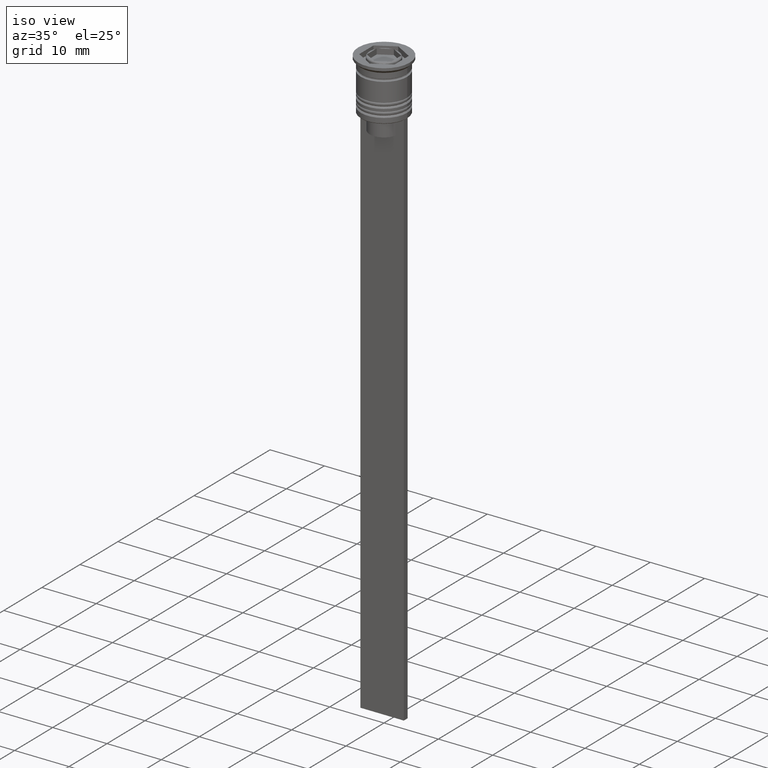
[diagram: clean part render]
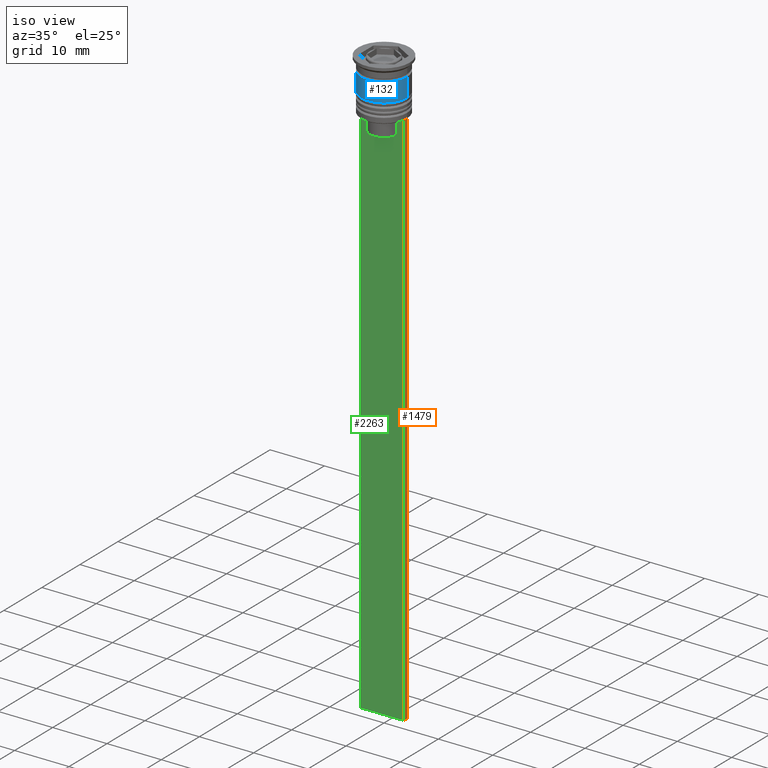
[diagram: same view with three faces highlighted in distinct colors, each labeled with its STEP entity id]
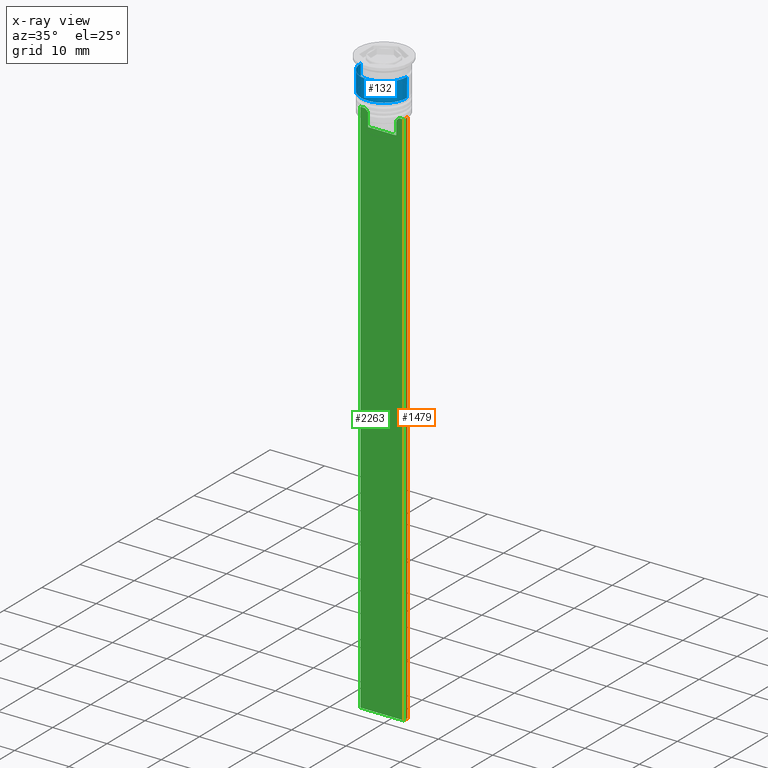
[diagram: x-ray of the same camera — body ghosted, the three highlighted faces saturated]
A machine part, iso view with three faces highlighted in distinct colors.
The next image is the same camera in x-ray (body ghosted, the three faces saturated) — at least one of them is partly hidden behind the body in this view.
Their STEP definitions:

[orange] entity #1479 — the highlighted planar face has unit normal (-1, 0, 0).
#8 = CARTESIAN_POINT ( 'NONE',  ( 4.000000000000005329, 0.4999999999999995559, -1.437742251701450202 ) ) ;
#14 = DIRECTION ( 'NONE',  ( 0.000000000000000000, 1.000000000000000000, 0.000000000000000000 ) ) ;
#217 = LINE ( 'NONE', #8, #1186 ) ;
#355 = EDGE_CURVE ( 'NONE', #1480, #1557, #440, .T. ) ;
#424 = CARTESIAN_POINT ( 'NONE',  ( 4.000000000000005329, -0.5000000000000004441, -9.500000000000000000 ) ) ;
#440 = LINE ( 'NONE', #813, #563 ) ;
#556 = CARTESIAN_POINT ( 'NONE',  ( 4.000000000000005329, -0.5000000000000004441, -109.5000000000000000 ) ) ;
#563 = VECTOR ( 'NONE', #2294, 1000.000000000000000 ) ;
#576 = VERTEX_POINT ( 'NONE', #1645 ) ;
#593 = CARTESIAN_POINT ( 'NONE',  ( 4.000000000000005329, -0.5000000000000004441, -109.5000000000000000 ) ) ;
#687 = VECTOR ( 'NONE', #2277, 1000.000000000000000 ) ;
#719 = EDGE_CURVE ( 'NONE', #576, #1369, #217, .T. ) ;
#813 = CARTESIAN_POINT ( 'NONE',  ( 4.000000000000005329, -0.5000000000000004441, -1.437742251701450202 ) ) ;
#946 = DIRECTION ( 'NONE',  ( -1.000000000000000000, 0.000000000000000000, 0.000000000000000000 ) ) ;
#1018 = ORIENTED_EDGE ( 'NONE', *, *, #1123, .T. ) ;
#1031 = EDGE_LOOP ( 'NONE', ( #2385, #1523, #1718, #1018 ) ) ;
#1123 = EDGE_CURVE ( 'NONE', #1557, #1369, #1286, .T. ) ;
#1186 = VECTOR ( 'NONE', #1513, 1000.000000000000000 ) ;
#1221 = EDGE_CURVE ( 'NONE', #576, #1480, #2252, .T. ) ;
#1286 = LINE ( 'NONE', #593, #1343 ) ;
#1306 = CARTESIAN_POINT ( 'NONE',  ( 4.000000000000005329, -0.5000000000000004441, -1.437742251701450202 ) ) ;
#1343 = VECTOR ( 'NONE', #14, 1000.000000000000000 ) ;
#1369 = VERTEX_POINT ( 'NONE', #2364 ) ;
#1475 = PLANE ( 'NONE',  #1497 ) ;
#1479 = ADVANCED_FACE ( 'NONE', ( #1871 ), #1475, .F. ) ;
#1480 = VERTEX_POINT ( 'NONE', #1687 ) ;
#1497 = AXIS2_PLACEMENT_3D ( 'NONE', #1306, #946, #1863 ) ;
#1513 = DIRECTION ( 'NONE',  ( 0.000000000000000000, 0.000000000000000000, -1.000000000000000000 ) ) ;
#1523 = ORIENTED_EDGE ( 'NONE', *, *, #1221, .T. ) ;
#1557 = VERTEX_POINT ( 'NONE', #556 ) ;
#1645 = CARTESIAN_POINT ( 'NONE',  ( 4.000000000000005329, 0.4999999999999995559, -9.500000000000000000 ) ) ;
#1687 = CARTESIAN_POINT ( 'NONE',  ( 4.000000000000005329, -0.5000000000000004441, -9.500000000000000000 ) ) ;
#1718 = ORIENTED_EDGE ( 'NONE', *, *, #355, .T. ) ;
#1863 = DIRECTION ( 'NONE',  ( 0.000000000000000000, 0.000000000000000000, 1.000000000000000000 ) ) ;
#1871 = FACE_OUTER_BOUND ( 'NONE', #1031, .T. ) ;
#2252 = LINE ( 'NONE', #424, #687 ) ;
#2277 = DIRECTION ( 'NONE',  ( 0.000000000000000000, -1.000000000000000000, 0.000000000000000000 ) ) ;
#2294 = DIRECTION ( 'NONE',  ( 0.000000000000000000, 0.000000000000000000, -1.000000000000000000 ) ) ;
#2364 = CARTESIAN_POINT ( 'NONE',  ( 4.000000000000005329, 0.4999999999999995559, -109.5000000000000000 ) ) ;
#2385 = ORIENTED_EDGE ( 'NONE', *, *, #719, .F. ) ;

[blue] entity #132 — the highlighted cylindrical surface (edge-blend (fillet) strip) has radius 4.25 mm, axis along (-0, -0, 1).
#132 = ADVANCED_FACE ( 'NONE', ( #668 ), #1618, .T. ) ;
#215 = AXIS2_PLACEMENT_3D ( 'NONE', #1843, #1491, #584 ) ;
#255 = CARTESIAN_POINT ( 'NONE',  ( -4.250000000000000000, 5.204748896376250699E-16, -2.500000000000000000 ) ) ;
#373 = VERTEX_POINT ( 'NONE', #255 ) ;
#389 = CARTESIAN_POINT ( 'NONE',  ( 4.250000000000000000, 0.000000000000000000, 0.000000000000000000 ) ) ;
#481 = DIRECTION ( 'NONE',  ( 1.000000000000000000, 0.000000000000000000, 0.000000000000000000 ) ) ;
#484 = AXIS2_PLACEMENT_3D ( 'NONE', #1406, #702, #481 ) ;
#522 = CARTESIAN_POINT ( 'NONE',  ( 4.250000000000000000, 0.000000000000000000, -2.500000000000000000 ) ) ;
#523 = VERTEX_POINT ( 'NONE', #1999 ) ;
#584 = DIRECTION ( 'NONE',  ( 1.000000000000000000, 0.000000000000000000, 0.000000000000000000 ) ) ;
#612 = CARTESIAN_POINT ( 'NONE',  ( -4.250000000000000888, 5.204748896376251685E-16, -6.000000000000000000 ) ) ;
#613 = AXIS2_PLACEMENT_3D ( 'NONE', #1462, #753, #1315 ) ;
#643 = DIRECTION ( 'NONE',  ( -0.000000000000000000, -0.000000000000000000, 1.000000000000000000 ) ) ;
#668 = FACE_OUTER_BOUND ( 'NONE', #809, .T. ) ;
#696 = EDGE_CURVE ( 'NONE', #373, #1427, #1146, .T. ) ;
#702 = DIRECTION ( 'NONE',  ( -0.000000000000000000, -0.000000000000000000, 1.000000000000000000 ) ) ;
#748 = EDGE_CURVE ( 'NONE', #523, #1427, #2043, .T. ) ;
#753 = DIRECTION ( 'NONE',  ( -0.000000000000000000, -0.000000000000000000, 1.000000000000000000 ) ) ;
#809 = EDGE_LOOP ( 'NONE', ( #2329, #1966, #823, #1908 ) ) ;
#823 = ORIENTED_EDGE ( 'NONE', *, *, #748, .T. ) ;
#957 = CIRCLE ( 'NONE', #613, 4.250000000000000888 ) ;
#1079 = VECTOR ( 'NONE', #1518, 1000.000000000000000 ) ;
#1146 = CIRCLE ( 'NONE', #215, 4.250000000000000000 ) ;
#1182 = CARTESIAN_POINT ( 'NONE',  ( -4.250000000000000000, 5.204748896376250699E-16, 0.000000000000000000 ) ) ;
#1315 = DIRECTION ( 'NONE',  ( 1.000000000000000000, 0.000000000000000000, 0.000000000000000000 ) ) ;
#1406 = CARTESIAN_POINT ( 'NONE',  ( 0.000000000000000000, 0.000000000000000000, 0.000000000000000000 ) ) ;
#1427 = VERTEX_POINT ( 'NONE', #522 ) ;
#1462 = CARTESIAN_POINT ( 'NONE',  ( 0.000000000000000000, 0.000000000000000000, -6.000000000000000000 ) ) ;
#1491 = DIRECTION ( 'NONE',  ( -0.000000000000000000, -0.000000000000000000, 1.000000000000000000 ) ) ;
#1518 = DIRECTION ( 'NONE',  ( -0.000000000000000000, -0.000000000000000000, 1.000000000000000000 ) ) ;
#1618 = CYLINDRICAL_SURFACE ( 'NONE', #484, 4.250000000000000000 ) ;
#1843 = CARTESIAN_POINT ( 'NONE',  ( 0.000000000000000000, 0.000000000000000000, -2.500000000000000000 ) ) ;
#1878 = VECTOR ( 'NONE', #643, 1000.000000000000000 ) ;
#1882 = LINE ( 'NONE', #1182, #1079 ) ;
#1908 = ORIENTED_EDGE ( 'NONE', *, *, #696, .F. ) ;
#1966 = ORIENTED_EDGE ( 'NONE', *, *, #1975, .T. ) ;
#1975 = EDGE_CURVE ( 'NONE', #2113, #523, #957, .T. ) ;
#1999 = CARTESIAN_POINT ( 'NONE',  ( 4.250000000000000888, 0.000000000000000000, -6.000000000000000000 ) ) ;
#2043 = LINE ( 'NONE', #389, #1878 ) ;
#2113 = VERTEX_POINT ( 'NONE', #612 ) ;
#2268 = EDGE_CURVE ( 'NONE', #2113, #373, #1882, .T. ) ;
#2329 = ORIENTED_EDGE ( 'NONE', *, *, #2268, .F. ) ;

[green] entity #2263 — the highlighted planar face has unit normal (0, -1, -0).
#22 = CARTESIAN_POINT ( 'NONE',  ( 2.602402735934616906, -0.5000000000000004441, -10.00000000000000178 ) ) ;
#33 = CARTESIAN_POINT ( 'NONE',  ( 3.110064308016796453, -0.5000000000000004441, -9.500000000000000000 ) ) ;
#51 = LINE ( 'NONE', #1640, #714 ) ;
#52 = EDGE_CURVE ( 'NONE', #2063, #1239, #2090, .T. ) ;
#84 = EDGE_CURVE ( 'NONE', #1054, #2063, #863, .T. ) ;
#87 = EDGE_CURVE ( 'NONE', #2028, #1480, #2315, .T. ) ;
#119 = CARTESIAN_POINT ( 'NONE',  ( 0.000000000000000000, -0.5000000000000004441, -12.50000000000000000 ) ) ;
#127 = CARTESIAN_POINT ( 'NONE',  ( -2.602402735934616906, -0.5000000000000004441, 0.000000000000000000 ) ) ;
#244 = EDGE_CURVE ( 'NONE', #1054, #476, #51, .T. ) ;
#286 = CARTESIAN_POINT ( 'NONE',  ( 4.000000000000005329, -0.5000000000000004441, -9.500000000000000000 ) ) ;
#323 = CARTESIAN_POINT ( 'NONE',  ( 4.000000000000005329, -0.5000000000000004441, -9.500000000000000000 ) ) ;
#331 = ORIENTED_EDGE ( 'NONE', *, *, #1464, .F. ) ;
#355 = EDGE_CURVE ( 'NONE', #1480, #1557, #440, .T. ) ;
#385 = CARTESIAN_POINT ( 'NONE',  ( 2.771864055700302476, -0.5000000000000004441, -9.833582414266679450 ) ) ;
#432 = DIRECTION ( 'NONE',  ( 0.000000000000000000, -1.000000000000000000, -0.000000000000000000 ) ) ;
#440 = LINE ( 'NONE', #813, #563 ) ;
#476 = VERTEX_POINT ( 'NONE', #1438 ) ;
#504 = B_SPLINE_CURVE_WITH_KNOTS ( 'NONE', 3,
 ( #22, #385, #755, #1509 ),
 .UNSPECIFIED., .F., .F.,
 ( 4, 4 ),
 ( 0.01295151922336847811, 0.01367164596165162602 ),
 .UNSPECIFIED. ) ;
#520 = EDGE_CURVE ( 'NONE', #1239, #2042, #1634, .T. ) ;
#528 = VERTEX_POINT ( 'NONE', #1974 ) ;
#554 = ORIENTED_EDGE ( 'NONE', *, *, #1850, .F. ) ;
#556 = CARTESIAN_POINT ( 'NONE',  ( 4.000000000000005329, -0.5000000000000004441, -109.5000000000000000 ) ) ;
#563 = VECTOR ( 'NONE', #2294, 1000.000000000000000 ) ;
#566 = DIRECTION ( 'NONE',  ( -0.000000000000000000, -0.000000000000000000, 1.000000000000000000 ) ) ;
#579 = FACE_OUTER_BOUND ( 'NONE', #1705, .T. ) ;
#589 = CARTESIAN_POINT ( 'NONE',  ( 4.000000000000005329, -0.5000000000000004441, -1.437742251701450202 ) ) ;
#628 = ORIENTED_EDGE ( 'NONE', *, *, #520, .F. ) ;
#670 = VERTEX_POINT ( 'NONE', #2023 ) ;
#714 = VECTOR ( 'NONE', #892, 1000.000000000000000 ) ;
#751 = VECTOR ( 'NONE', #1432, 1000.000000000000000 ) ;
#755 = CARTESIAN_POINT ( 'NONE',  ( 2.941045828809988549, -0.5000000000000004441, -9.666875663357577864 ) ) ;
#763 = VECTOR ( 'NONE', #1232, 1000.000000000000000 ) ;
#787 = CARTESIAN_POINT ( 'NONE',  ( -3.110064308016796453, -0.5000000000000004441, -9.500000000000000000 ) ) ;
#797 = VECTOR ( 'NONE', #1210, 1000.000000000000000 ) ;
#811 = VECTOR ( 'NONE', #2382, 1000.000000000000000 ) ;
#813 = CARTESIAN_POINT ( 'NONE',  ( 4.000000000000005329, -0.5000000000000004441, -1.437742251701450202 ) ) ;
#863 = LINE ( 'NONE', #323, #751 ) ;
#892 = DIRECTION ( 'NONE',  ( 0.000000000000000000, 0.000000000000000000, -1.000000000000000000 ) ) ;
#931 = ORIENTED_EDGE ( 'NONE', *, *, #1489, .F. ) ;
#1054 = VERTEX_POINT ( 'NONE', #2062 ) ;
#1060 = VECTOR ( 'NONE', #1777, 1000.000000000000000 ) ;
#1117 = ORIENTED_EDGE ( 'NONE', *, *, #84, .F. ) ;
#1125 = CARTESIAN_POINT ( 'NONE',  ( 2.602402735934616906, -0.5000000000000004441, 0.000000000000000000 ) ) ;
#1144 = PLANE ( 'NONE',  #1273 ) ;
#1191 = ORIENTED_EDGE ( 'NONE', *, *, #355, .F. ) ;
#1210 = DIRECTION ( 'NONE',  ( -1.000000000000000000, 0.000000000000000000, 0.000000000000000000 ) ) ;
#1232 = DIRECTION ( 'NONE',  ( 1.000000000000000000, 0.000000000000000000, 0.000000000000000000 ) ) ;
#1234 = CARTESIAN_POINT ( 'NONE',  ( -2.941047749529104749, -0.5000000000000004441, -9.666873766989334982 ) ) ;
#1239 = VERTEX_POINT ( 'NONE', #2288 ) ;
#1273 = AXIS2_PLACEMENT_3D ( 'NONE', #589, #432, #1723 ) ;
#1287 = EDGE_CURVE ( 'NONE', #1557, #476, #2088, .T. ) ;
#1432 = DIRECTION ( 'NONE',  ( 1.000000000000000000, 0.000000000000000000, 0.000000000000000000 ) ) ;
#1438 = CARTESIAN_POINT ( 'NONE',  ( -3.999999999999994671, -0.5000000000000004441, -109.5000000000000000 ) ) ;
#1446 = ORIENTED_EDGE ( 'NONE', *, *, #244, .T. ) ;
#1457 = ORIENTED_EDGE ( 'NONE', *, *, #52, .F. ) ;
#1464 = EDGE_CURVE ( 'NONE', #528, #670, #1839, .T. ) ;
#1480 = VERTEX_POINT ( 'NONE', #1687 ) ;
#1489 = EDGE_CURVE ( 'NONE', #670, #2028, #504, .T. ) ;
#1509 = CARTESIAN_POINT ( 'NONE',  ( 3.110064308016796453, -0.5000000000000004441, -9.500000000000000000 ) ) ;
#1549 = CARTESIAN_POINT ( 'NONE',  ( 4.000000000000005329, -0.5000000000000004441, -109.5000000000000000 ) ) ;
#1557 = VERTEX_POINT ( 'NONE', #556 ) ;
#1603 = CARTESIAN_POINT ( 'NONE',  ( -3.110064308016796453, -0.5000000000000004441, -9.500000000000000000 ) ) ;
#1634 = LINE ( 'NONE', #127, #811 ) ;
#1640 = CARTESIAN_POINT ( 'NONE',  ( -3.999999999999994671, -0.5000000000000004441, -1.437742251701450202 ) ) ;
#1687 = CARTESIAN_POINT ( 'NONE',  ( 4.000000000000005329, -0.5000000000000004441, -9.500000000000000000 ) ) ;
#1688 = VECTOR ( 'NONE', #566, 1000.000000000000000 ) ;
#1705 = EDGE_LOOP ( 'NONE', ( #1457, #1117, #1446, #1981, #1191, #1772, #931, #331, #554, #628 ) ) ;
#1723 = DIRECTION ( 'NONE',  ( 0.000000000000000000, 0.000000000000000000, -1.000000000000000000 ) ) ;
#1737 = CARTESIAN_POINT ( 'NONE',  ( -2.602402735934616906, -0.5000000000000004441, -12.50000000000000000 ) ) ;
#1763 = CARTESIAN_POINT ( 'NONE',  ( -2.771866350855961336, -0.5000000000000004441, -9.833580160334840059 ) ) ;
#1772 = ORIENTED_EDGE ( 'NONE', *, *, #87, .F. ) ;
#1777 = DIRECTION ( 'NONE',  ( 1.000000000000000000, 0.000000000000000000, 0.000000000000000000 ) ) ;
#1839 = LINE ( 'NONE', #1125, #1688 ) ;
#1850 = EDGE_CURVE ( 'NONE', #2042, #528, #1954, .T. ) ;
#1954 = LINE ( 'NONE', #119, #763 ) ;
#1974 = CARTESIAN_POINT ( 'NONE',  ( 2.602402735934616906, -0.5000000000000004441, -12.50000000000000000 ) ) ;
#1979 = CARTESIAN_POINT ( 'NONE',  ( -2.602402735934616906, -0.5000000000000004441, -10.00000000000000178 ) ) ;
#1981 = ORIENTED_EDGE ( 'NONE', *, *, #1287, .F. ) ;
#2023 = CARTESIAN_POINT ( 'NONE',  ( 2.602402735934616906, -0.5000000000000004441, -10.00000000000000178 ) ) ;
#2028 = VERTEX_POINT ( 'NONE', #33 ) ;
#2042 = VERTEX_POINT ( 'NONE', #1737 ) ;
#2062 = CARTESIAN_POINT ( 'NONE',  ( -3.999999999999994671, -0.5000000000000004441, -9.500000000000000000 ) ) ;
#2063 = VERTEX_POINT ( 'NONE', #787 ) ;
#2088 = LINE ( 'NONE', #1549, #797 ) ;
#2090 = B_SPLINE_CURVE_WITH_KNOTS ( 'NONE', 3,
 ( #1603, #1234, #1763, #1979 ),
 .UNSPECIFIED., .F., .F.,
 ( 4, 4 ),
 ( 0.005378271293598281544, 0.006090816219556000749 ),
 .UNSPECIFIED. ) ;
#2263 = ADVANCED_FACE ( 'NONE', ( #579 ), #1144, .T. ) ;
#2288 = CARTESIAN_POINT ( 'NONE',  ( -2.602402735934616906, -0.5000000000000004441, -10.00000000000000178 ) ) ;
#2294 = DIRECTION ( 'NONE',  ( 0.000000000000000000, 0.000000000000000000, -1.000000000000000000 ) ) ;
#2315 = LINE ( 'NONE', #286, #1060 ) ;
#2382 = DIRECTION ( 'NONE',  ( 0.000000000000000000, 0.000000000000000000, -1.000000000000000000 ) ) ;